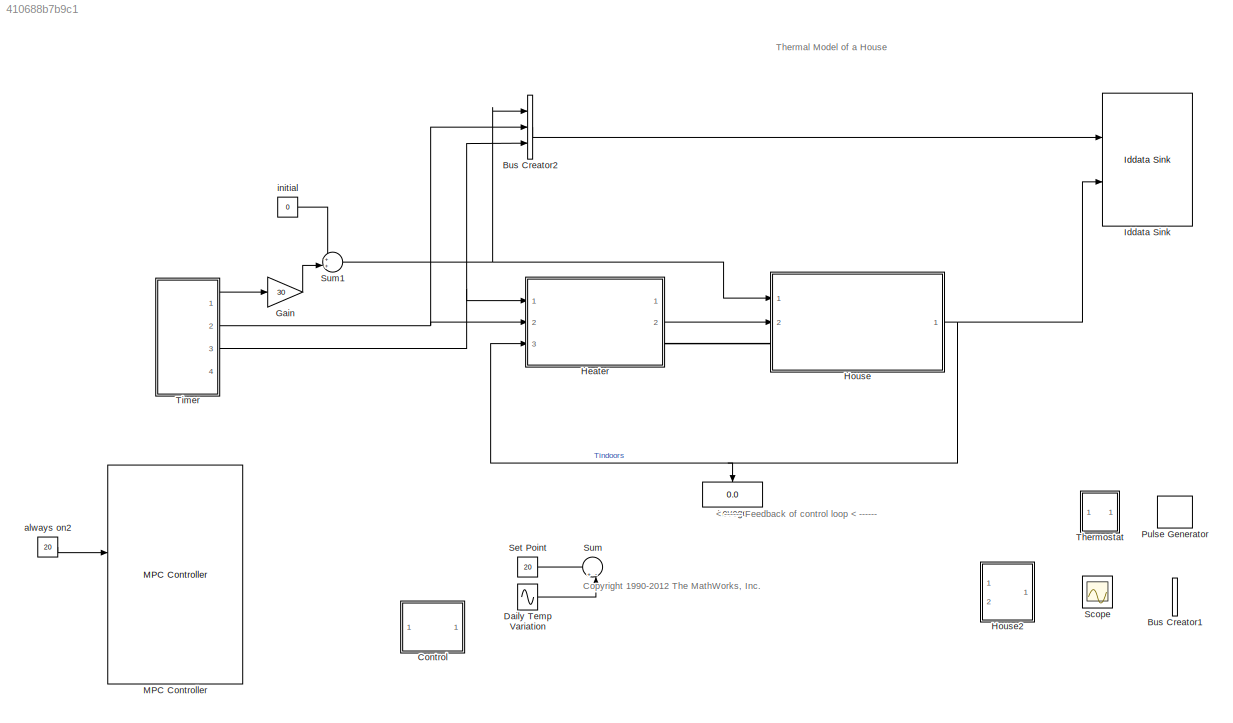
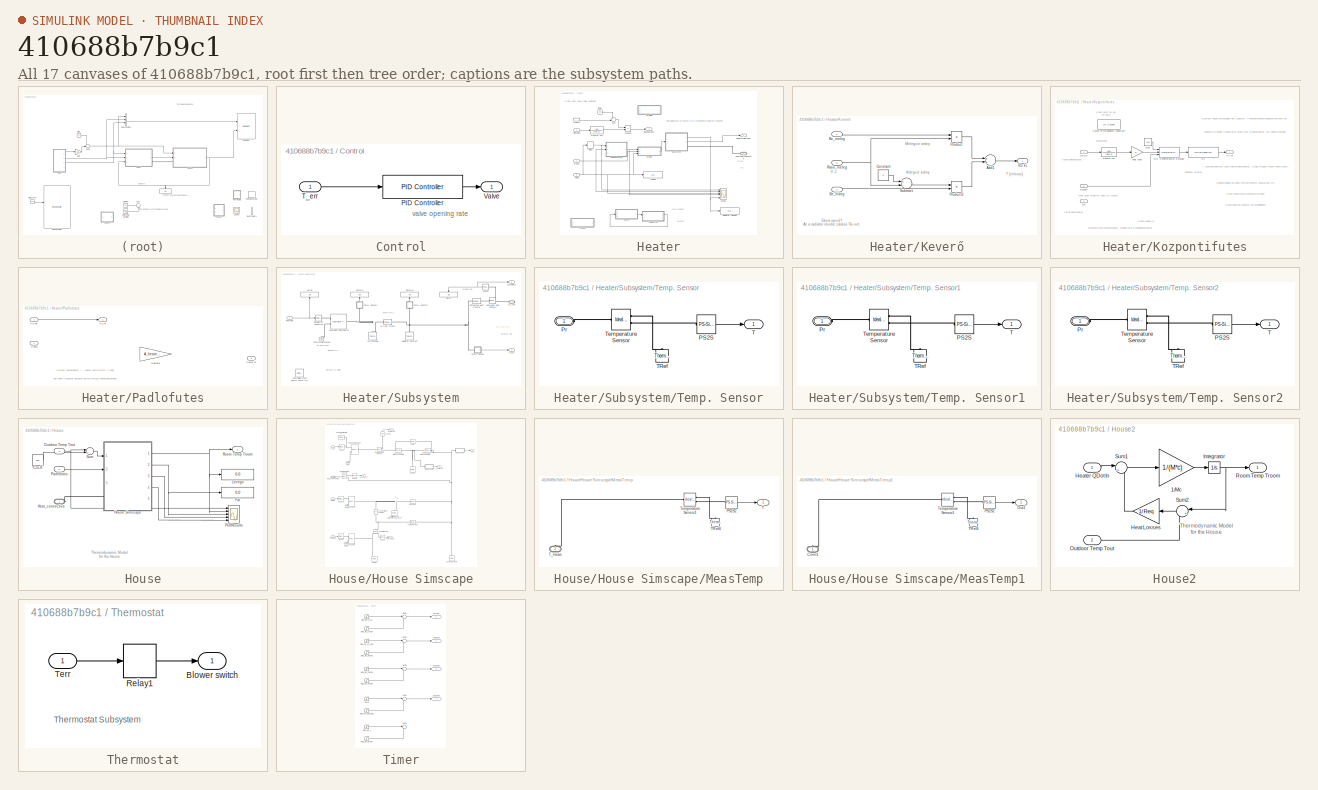
[diagram: thumbnail index - all 17 canvases of the model, root first then tree order]
MODEL slx_410688b7b9c1
KIND model
CONFIG AbsTol = 1e-6
CONFIG EnableMultiTasking = off
CONFIG FixedStep = 1
CONFIG MaxStep = auto
CONFIG MinStep = auto
CONFIG RelTol = 1e-3
CONFIG SampleTimeConstraint = Unconstrained
CONFIG Solver = ode45
CONFIG SolverName = ode45
CONFIG StartTime = 0.0
CONFIG StopTime = 3600*24*68
WORKSPACE source: MATLAB code (in-file)
WORKSPACE code: househeat_data_szakdoga
WORKSPACE code: addpath('components', 'toMPC')
WORKSPACE code: load('toMPC/mpc_model_and_initial_controller.mat')
WORKSPACE code: load('components/radiator_felulet.mat')
BLOCK [BusCreator] Bus Creator1
  Commented = on
  DisplayOption = bar
  InheritFromInputs = on
  Inputs = 2
  Ports = [2, 1]
BLOCK [BusCreator] Bus Creator2
  DisplayOption = bar
  InheritFromInputs = on
  Inputs = 3
  Ports = [3, 1]
BLOCK [SubSystem] Control
  Commented = on
  Ports = [1, 1]
  RequestExecContextInheritance = off
  Variant = off
BLOCK [Reference] Control/PID Controller  REF=simulink/Continuous/PID Controller
  Ports = [1, 1]
  SourceBlock = simulink/Continuous/PID Controller
  SourceType = PID 1dof
BLOCK [Inport] Control/T_err
  IconDisplay = Port number
BLOCK [Outport] Control/Valve
  IconDisplay = Port number
BLOCK [Sin] Daily Temp Variation
  Amplitude = 5
  Commented = on
  Frequency = 3.14*2/3600/24
  Phase = 3.14/2
  Ports = [0, 1]
  SampleTime = 0
BLOCK [Gain] Gain
  Gain = 30
  OutDataTypeStr = Inherit: Inherit via internal rule
  ParamDataTypeStr = Inherit: Inherit via internal rule
  SaturateOnIntegerOverflow = off
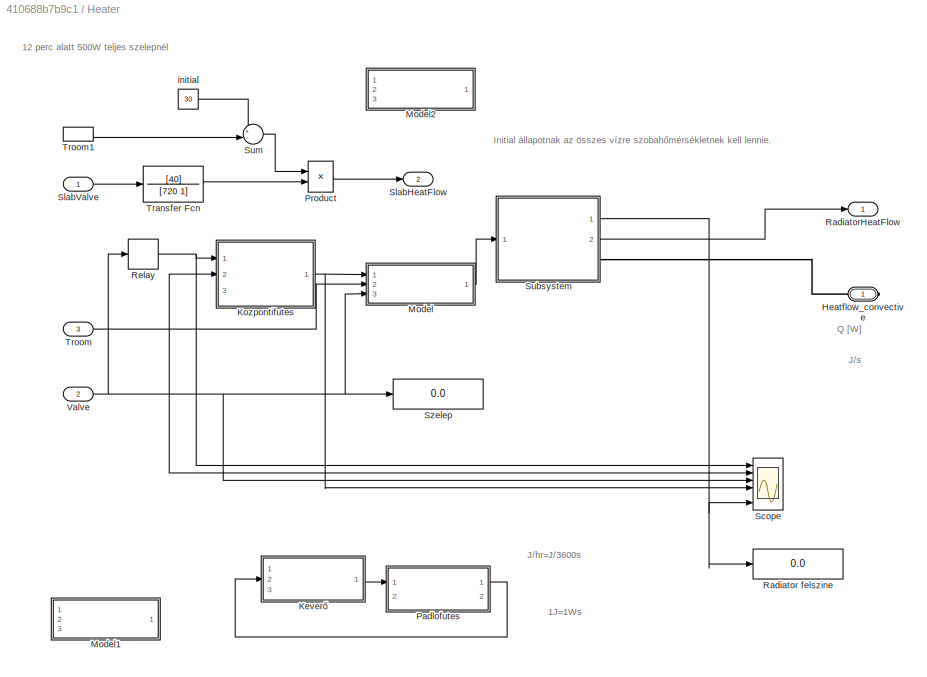
BLOCK [SubSystem] Heater
  Ports = [3, 2, 0, 0, 0, 0, 1]
  RequestExecContextInheritance = off
  Variant = off
BLOCK [PMIOPort] Heater/Heatflow_convective
  Port = 1
  Side = Right
BLOCK [SubSystem] Heater/Keverő
  Commented = on
  Ports = [3, 1]
  RequestExecContextInheritance = off
  Variant = off
BLOCK [Sum] Heater/Keverő/Add1
  InputSameDT = off
  OutDataTypeStr = Inherit: Inherit via internal rule
  Ports = [2, 1]
  SaturateOnIntegerOverflow = off
BLOCK [Inport] Heater/Keverő/Be_hideg
  IconDisplay = Port number
  Port = 2
BLOCK [Inport] Heater/Keverő/Be_meleg
  IconDisplay = Port number
BLOCK [Constant] Heater/Keverő/Constant
BLOCK [Product] Heater/Keverő/Product
  InputSameDT = off
  OutDataTypeStr = Inherit: Inherit via internal rule
  Ports = [2, 1]
  RndMeth = Floor
  SaturateOnIntegerOverflow = off
BLOCK [Product] Heater/Keverő/Product2
  InputSameDT = off
  OutDataTypeStr = Inherit: Inherit via internal rule
  Ports = [2, 1]
  RndMeth = Floor
  SaturateOnIntegerOverflow = off
BLOCK [Inport] Heater/Keverő/Ratio_meleg
  IconDisplay = Port number
  Port = 3
BLOCK [Sum] Heater/Keverő/Subtract
  InputSameDT = off
  Inputs = +-
  OutDataTypeStr = Inherit: Inherit via internal rule
  Ports = [2, 1]
  SaturateOnIntegerOverflow = off
BLOCK [Outport] Heater/Keverő/Víz ki
  IconDisplay = Port number
BLOCK [SubSystem] Heater/Kozpontifutes
  Ports = [3, 1]
  RequestExecContextInheritance = off
  Variant = off
BLOCK [InitialCondition] Heater/Kozpontifutes/IC1
  Value = supp_water_initial_temp
BLOCK [Reference] Heater/Kozpontifutes/Kazán felmelegedése (40deg set)  REF=cstblocks/LTI System
  Ports = [1, 1]
  SourceBlock = cstblocks/LTI System
  SourceType = LTI Block
BLOCK [Reference] Heater/Kozpontifutes/Min. vízhőmérséklet a szobáé  REF=simulink/Discontinuities/Saturation
Dynamic
  Ports = [3, 1]
  SourceBlock = simulink/Discontinuities/Saturation\nDynamic
  SourceType = Saturation Dynamic
BLOCK [Inport] Heater/Kozpontifutes/On//Off
  IconDisplay = Port number
BLOCK [Inport] Heater/Kozpontifutes/T_e
  IconDisplay = Port number
  Port = 3
BLOCK [Inport] Heater/Kozpontifutes/T_szoba
  IconDisplay = Port number
  Port = 2
BLOCK [TransferFcn] Heater/Kozpontifutes/Transfer Fcn
  Denominator = [600 1]
  Numerator = [60]
BLOCK [Outport] Heater/Kozpontifutes/Víz ki
  IconDisplay = Port number
BLOCK [Gain] Heater/Kozpontifutes/heat const
  OutDataTypeStr = Inherit: Inherit via internal rule
  ParamDataTypeStr = Inherit: Inherit via internal rule
  SaturateOnIntegerOverflow = off
BLOCK [Constant] Heater/Kozpontifutes/max.
  Value = 100
BLOCK [ModelReference] Heater/Model
  ModelNameDialog = Radiator
  ModelReferenceVersion = 1.19
  Ports = [3, 1]
  Variant = off
BLOCK [ModelReference] Heater/Model1
  Commented = on
  ModelNameDialog = Radiator
  ModelReferenceVersion = 1.19
  Ports = [3, 1]
  Variant = off
BLOCK [ModelReference] Heater/Model2
  ModelNameDialog = Radiator
  ModelReferenceVersion = 1.19
  Ports = [3, 1]
  Variant = off
BLOCK [SubSystem] Heater/Padlofutes
  Commented = on
  Ports = [2, 2]
  RequestExecContextInheritance = off
  Variant = off
BLOCK [Outport] Heater/Padlofutes/Power ki
  IconDisplay = Port number
  Port = 2
BLOCK [Gain] Heater/Padlofutes/Radiátor
  Gain = A_heater*h_heater
  OutDataTypeStr = Inherit: Inherit via internal rule
  ParamDataTypeStr = Inherit: Inherit via internal rule
  SaturateOnIntegerOverflow = off
BLOCK [Inport] Heater/Padlofutes/Troom
  IconDisplay = Port number
  Port = 2
BLOCK [Inport] Heater/Padlofutes/Víz be
  IconDisplay = Port number
BLOCK [Outport] Heater/Padlofutes/Víz ki
  IconDisplay = Port number
BLOCK [Product] Heater/Product
  InputSameDT = off
  OutDataTypeStr = Inherit: Inherit via internal rule
  Ports = [2, 1]
  RndMeth = Floor
  SaturateOnIntegerOverflow = off
BLOCK [Display] Heater/Radiator felszine
  Decimation = 1
  Ports = [1]
BLOCK [Outport] Heater/RadiatorHeatFlow
  IconDisplay = Port number
BLOCK [Relay] Heater/Relay
  InputProcessing = Elements as channels (sample based)
  OffSwitchValue = 0.05
  OnSwitchValue = 0.15
BLOCK [Scope] Heater/Scope
  NumInputPorts = 6
  Ports = [6]
  ScopeSpecificationString = Simulink.scopes.TimeScopeBlockCfg('CurrentConfiguration', extmgr.ConfigurationSet(extmgr.Configuration('Core','General UI',true),extmgr.Configuration('Core','Source UI',true),extmgr.Configuration('Sources','WiredSimulink',true,'DataLoggingVariableName','ScopeData1'),extmgr.Configuration('Visuals','Time Domain',true,'SerializedDisplays',{struct('MinYLimReal','0.00000','MaxYLimReal','1.00000','YLabe...<+5029ch>
BLOCK [Outport] Heater/SlabHeatFlow
  IconDisplay = Port number
  Port = 2
BLOCK [Inport] Heater/SlabValve
  IconDisplay = Port number
BLOCK [SubSystem] Heater/Subsystem
  Ports = [1, 2, 0, 0, 0, 0, 1]
  RequestExecContextInheritance = off
  Variant = off
BLOCK [Reference] Heater/Subsystem/Controlled Mass Flow Rate Source (TL)  REF=fl_lib/Thermal Liquid/Sources/Controlled Mass Flow
Rate Source (TL)
  Commented = on
  Ports = [0, 0, 0, 0, 0, 2, 1]
  SourceBlock = fl_lib/Thermal Liquid/Sources/Controlled Mass Flow\nRate Source (TL)
  SourceType = Controlled Mass Flow\nRate Source (TL)
BLOCK [Reference] Heater/Subsystem/Convective Heat Transfer  REF=fl_lib/Thermal/Thermal Elements/Convective Heat
Transfer
  Ports = [0, 0, 0, 0, 0, 1, 1]
  SourceBlock = fl_lib/Thermal/Thermal Elements/Convective Heat\nTransfer
  SourceType = Convective Heat\nTransfer
BLOCK [Display] Heater/Subsystem/Fűtővíz
  Decimation = 1
  Ports = [1]
BLOCK [Display] Heater/Subsystem/Fűtővíz1
  Decimation = 1
  Ports = [1]
BLOCK [Inport] Heater/Subsystem/HeatFlow
  IconDisplay = Port number
BLOCK [Display] Heater/Subsystem/Hő be
  Decimation = 1
  Ports = [1]
BLOCK [Display] Heater/Subsystem/Hő ki
  Decimation = 1
  Ports = [1]
BLOCK [Reference] Heater/Subsystem/Ideal Heat Flow Sensor3  REF=fl_lib/Thermal/Thermal Sensors/Ideal Heat Flow
Sensor
  Ports = [0, 0, 0, 0, 0, 1, 2]
  SourceBlock = fl_lib/Thermal/Thermal Sensors/Ideal Heat Flow\nSensor
  SourceType = Ideal Heat Flow\nSensor
BLOCK [Reference] Heater/Subsystem/Ideal Heat Flow Source  REF=fl_lib/Thermal/Thermal Sources/Ideal Heat Flow
Source
  Ports = [0, 0, 0, 0, 0, 1, 2]
  SourceBlock = fl_lib/Thermal/Thermal Sources/Ideal Heat Flow\nSource
  SourceType = Ideal Heat Flow\nSource
BLOCK [Reference] Heater/Subsystem/PS2S4  REF=nesl_utility/PS-Simulink
Converter
  Ports = [0, 1, 0, 0, 0, 1]
  SourceBlock = nesl_utility/PS-Simulink\nConverter
  SourceType = PS-Simulink\nConverter
BLOCK [Outport] Heater/Subsystem/Q_radiator
  IconDisplay = Port number
  Port = 2
BLOCK [Reference] Heater/Subsystem/Radiátor fémtest  REF=fl_lib/Thermal/Thermal Elements/Thermal Mass
  Ports = [0, 0, 0, 0, 0, 1]
  SourceBlock = fl_lib/Thermal/Thermal Elements/Thermal Mass
  SourceType = Thermal Mass
BLOCK [Reference] Heater/Subsystem/Simulink-PS Converter  REF=nesl_utility/Simulink-PS
Converter
  Ports = [1, 0, 0, 0, 0, 0, 1]
  SourceBlock = nesl_utility/Simulink-PS\nConverter
  SourceType = Simulink-PS\nConverter
BLOCK [Outport] Heater/Subsystem/T_surf
  IconDisplay = Port number
BLOCK [SubSystem] Heater/Subsystem/Temp. Sensor
  Ports = [0, 1, 0, 0, 0, 1]
  RequestExecContextInheritance = off
  Variant = off
BLOCK [Reference] Heater/Subsystem/Temp. Sensor/PS2S  REF=nesl_utility/PS-Simulink
Converter
  Ports = [0, 1, 0, 0, 0, 1]
  SourceBlock = nesl_utility/PS-Simulink\nConverter
  SourceType = PS-Simulink\nConverter
BLOCK [PMIOPort] Heater/Subsystem/Temp. Sensor/Pr
  Port = 1
  Side = Left
BLOCK [Outport] Heater/Subsystem/Temp. Sensor/T
  IconDisplay = Port number
BLOCK [Reference] Heater/Subsystem/Temp. Sensor/TRef  REF=fl_lib/Thermal/Thermal Elements/Thermal Reference
  Ports = [0, 0, 0, 0, 0, 1]
  SourceBlock = fl_lib/Thermal/Thermal Elements/Thermal Reference
  SourceType = Thermal Reference
BLOCK [Reference] Heater/Subsystem/Temp. Sensor/Temperature Sensor  REF=fl_lib/Thermal/Thermal Sensors/Ideal Temperature
Sensor
  Ports = [0, 0, 0, 0, 0, 1, 2]
  SourceBlock = fl_lib/Thermal/Thermal Sensors/Ideal Temperature\nSensor
  SourceType = Ideal Temperature\nSensor
BLOCK [SubSystem] Heater/Subsystem/Temp. Sensor1
  Ports = [0, 1, 0, 0, 0, 1]
  RequestExecContextInheritance = off
  Variant = off
BLOCK [Reference] Heater/Subsystem/Temp. Sensor1/PS2S  REF=nesl_utility/PS-Simulink
Converter
  Ports = [0, 1, 0, 0, 0, 1]
  SourceBlock = nesl_utility/PS-Simulink\nConverter
  SourceType = PS-Simulink\nConverter
BLOCK [PMIOPort] Heater/Subsystem/Temp. Sensor1/Pr
  Port = 1
  Side = Left
BLOCK [Outport] Heater/Subsystem/Temp. Sensor1/T
  IconDisplay = Port number
BLOCK [Reference] Heater/Subsystem/Temp. Sensor1/TRef  REF=fl_lib/Thermal/Thermal Elements/Thermal Reference
  Ports = [0, 0, 0, 0, 0, 1]
  SourceBlock = fl_lib/Thermal/Thermal Elements/Thermal Reference
  SourceType = Thermal Reference
BLOCK [Reference] Heater/Subsystem/Temp. Sensor1/Temperature Sensor  REF=fl_lib/Thermal/Thermal Sensors/Ideal Temperature
Sensor
  Ports = [0, 0, 0, 0, 0, 1, 2]
  SourceBlock = fl_lib/Thermal/Thermal Sensors/Ideal Temperature\nSensor
  SourceType = Ideal Temperature\nSensor
BLOCK [SubSystem] Heater/Subsystem/Temp. Sensor2
  Ports = [0, 1, 0, 0, 0, 1]
  RequestExecContextInheritance = off
  Variant = off
BLOCK [Reference] Heater/Subsystem/Temp. Sensor2/PS2S  REF=nesl_utility/PS-Simulink
Converter
  Ports = [0, 1, 0, 0, 0, 1]
  SourceBlock = nesl_utility/PS-Simulink\nConverter
  SourceType = PS-Simulink\nConverter
BLOCK [PMIOPort] Heater/Subsystem/Temp. Sensor2/Pr
  Port = 1
  Side = Left
BLOCK [Outport] Heater/Subsystem/Temp. Sensor2/T
  IconDisplay = Port number
BLOCK [Reference] Heater/Subsystem/Temp. Sensor2/TRef  REF=fl_lib/Thermal/Thermal Elements/Thermal Reference
  Ports = [0, 0, 0, 0, 0, 1]
  SourceBlock = fl_lib/Thermal/Thermal Elements/Thermal Reference
  SourceType = Thermal Reference
BLOCK [Reference] Heater/Subsystem/Temp. Sensor2/Temperature Sensor  REF=fl_lib/Thermal/Thermal Sensors/Ideal Temperature
Sensor
  Ports = [0, 0, 0, 0, 0, 1, 2]
  SourceBlock = fl_lib/Thermal/Thermal Sensors/Ideal Temperature\nSensor
  SourceType = Ideal Temperature\nSensor
BLOCK [Reference] Heater/Subsystem/Thermal Reference  REF=fl_lib/Thermal/Thermal Elements/Thermal Reference
  Ports = [0, 0, 0, 0, 0, 1]
  SourceBlock = fl_lib/Thermal/Thermal Elements/Thermal Reference
  SourceType = Thermal Reference
BLOCK [Reference] Heater/Subsystem/Víz tömege  REF=fl_lib/Thermal/Thermal Elements/Thermal Mass
  Ports = [0, 0, 0, 0, 0, 1]
  SourceBlock = fl_lib/Thermal/Thermal Elements/Thermal Mass
  SourceType = Thermal Mass
BLOCK [Reference] Heater/Subsystem/Víz-fém átvitel  REF=fl_lib/Thermal/Thermal Elements/Convective Heat
Transfer
  Ports = [0, 0, 0, 0, 0, 1, 1]
  SourceBlock = fl_lib/Thermal/Thermal Elements/Convective Heat\nTransfer
  SourceType = Convective Heat\nTransfer
BLOCK [PMIOPort] Heater/Subsystem/q_c_out
  Port = 1
  Side = Right
BLOCK [Sum] Heater/Sum
  IconShape = round
  InputSameDT = off
  Inputs = +-|
  OutDataTypeStr = Inherit: Inherit via internal rule
  Ports = [2, 1]
  SaturateOnIntegerOverflow = off
BLOCK [Display] Heater/Szelep
  Decimation = 1
  Ports = [1]
BLOCK [TransferFcn] Heater/Transfer Fcn
  Denominator = [720 1]
  Numerator = [40]
BLOCK [Inport] Heater/Troom
  IconDisplay = Port number
  Port = 3
BLOCK [InportShadow] Heater/Troom1
  IconDisplay = Port number
  Port = 3
BLOCK [Inport] Heater/Valve
  IconDisplay = Port number
  Port = 2
BLOCK [Constant] Heater/initial
  Value = 30
BLOCK [SubSystem] House
  Ports = [2, 1, 0, 0, 0, 1]
  RequestExecContextInheritance = off
  ShowPortLabels = SignalName
  Variant = off
BLOCK [Display] House/Fal
  Decimation = 1
  Ports = [1]
BLOCK [PMIOPort] House/Heat_convective
  Port = 1
  Side = Left
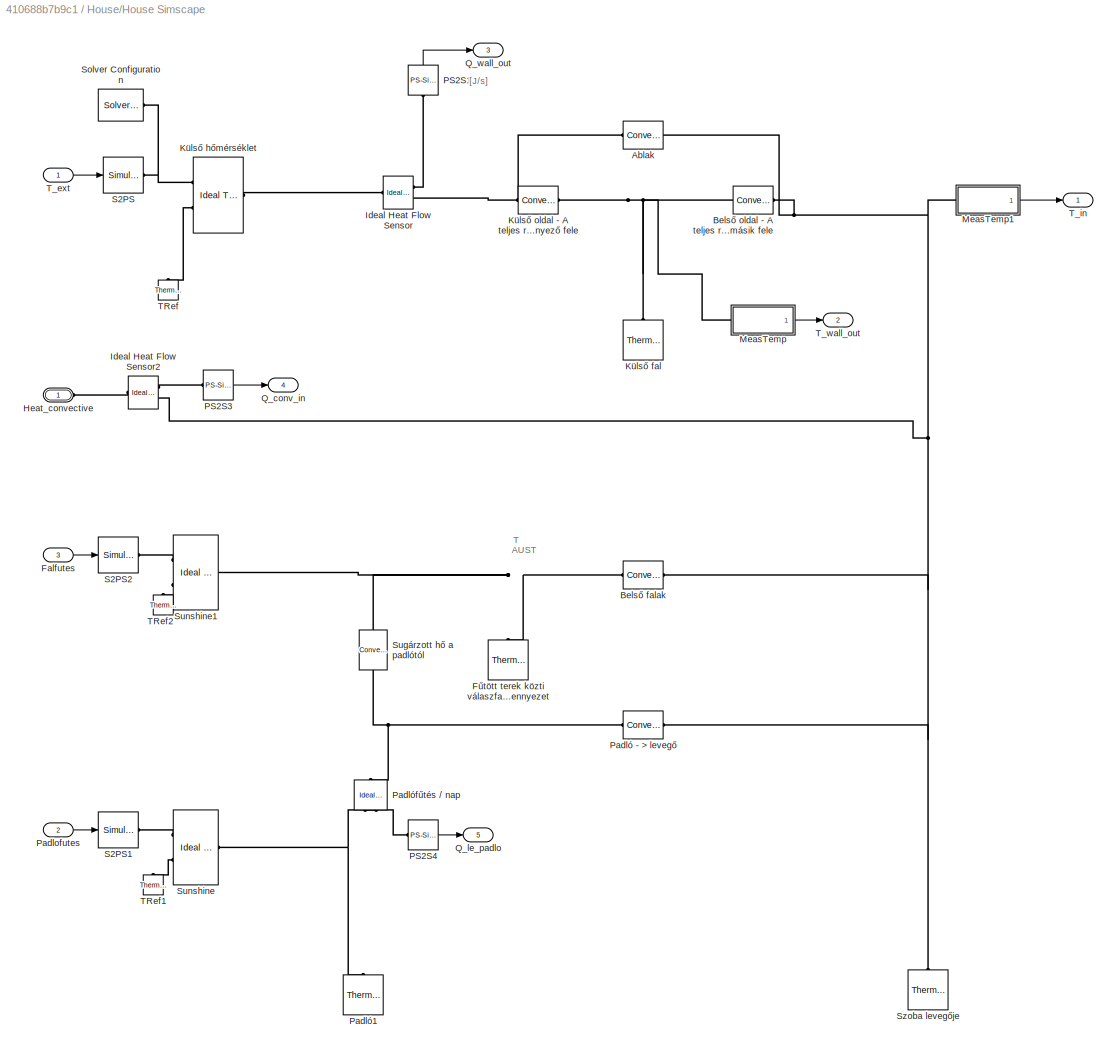
BLOCK [SubSystem] House/House Simscape
  Ports = [3, 5, 0, 0, 0, 1]
  RequestExecContextInheritance = off
  Variant = off
BLOCK [Reference] House/House Simscape/Ablak  REF=fl_lib/Thermal/Thermal Elements/Convective Heat
Transfer
  Ports = [0, 0, 0, 0, 0, 1, 1]
  SourceBlock = fl_lib/Thermal/Thermal Elements/Convective Heat\nTransfer
  SourceType = Convective Heat\nTransfer
BLOCK [Reference] House/House Simscape/Belső falak  REF=fl_lib/Thermal/Thermal Elements/Convective Heat
Transfer
  Ports = [0, 0, 0, 0, 0, 1, 1]
  SourceBlock = fl_lib/Thermal/Thermal Elements/Convective Heat\nTransfer
  SourceType = Convective Heat\nTransfer
BLOCK [Reference] House/House Simscape/Belső oldal - A teljes rétegtervi hőátbocsátási tényező másik fele  REF=fl_lib/Thermal/Thermal Elements/Convective Heat
Transfer
  Ports = [0, 0, 0, 0, 0, 1, 1]
  SourceBlock = fl_lib/Thermal/Thermal Elements/Convective Heat\nTransfer
  SourceType = Convective Heat\nTransfer
BLOCK [Inport] House/House Simscape/Falfutes
  IconDisplay = Port number
  Port = 3
BLOCK [Reference] House/House Simscape/Fűtött terek közti válaszfalak, mennyezet  REF=fl_lib/Thermal/Thermal Elements/Thermal Mass
  Ports = [0, 0, 0, 0, 0, 1]
  SourceBlock = fl_lib/Thermal/Thermal Elements/Thermal Mass
  SourceType = Thermal Mass
BLOCK [PMIOPort] House/House Simscape/Heat_convective
  Port = 1
  Side = Left
BLOCK [Reference] House/House Simscape/Ideal Heat Flow Sensor  REF=fl_lib/Thermal/Thermal Sensors/Ideal Heat Flow
Sensor
  Ports = [0, 0, 0, 0, 0, 1, 2]
  SourceBlock = fl_lib/Thermal/Thermal Sensors/Ideal Heat Flow\nSensor
  SourceType = Ideal Heat Flow\nSensor
BLOCK [Reference] House/House Simscape/Ideal Heat Flow Sensor2  REF=fl_lib/Thermal/Thermal Sensors/Ideal Heat Flow
Sensor
  Ports = [0, 0, 0, 0, 0, 1, 2]
  SourceBlock = fl_lib/Thermal/Thermal Sensors/Ideal Heat Flow\nSensor
  SourceType = Ideal Heat Flow\nSensor
BLOCK [Reference] House/House Simscape/Külső fal  REF=fl_lib/Thermal/Thermal Elements/Thermal Mass
  Ports = [0, 0, 0, 0, 0, 1]
  SourceBlock = fl_lib/Thermal/Thermal Elements/Thermal Mass
  SourceType = Thermal Mass
BLOCK [Reference] House/House Simscape/Külső hőmérséklet  REF=fl_lib/Thermal/Thermal Sources/Ideal Temperature
Source
  Ports = [0, 0, 0, 0, 0, 1, 2]
  SourceBlock = fl_lib/Thermal/Thermal Sources/Ideal Temperature\nSource
  SourceType = Ideal Temperature\nSource
BLOCK [Reference] House/House Simscape/Külső oldal - A teljes rétegtervi hőátbocsátási tényező fele  REF=fl_lib/Thermal/Thermal Elements/Convective Heat
Transfer
  Ports = [0, 0, 0, 0, 0, 1, 1]
  SourceBlock = fl_lib/Thermal/Thermal Elements/Convective Heat\nTransfer
  SourceType = Convective Heat\nTransfer
BLOCK [SubSystem] House/House Simscape/MeasTemp
  Ports = [0, 1, 0, 0, 0, 1]
  RequestExecContextInheritance = off
  Variant = off
BLOCK [Reference] House/House Simscape/MeasTemp/PS2S2  REF=nesl_utility/PS-Simulink
Converter
  Ports = [0, 1, 0, 0, 0, 1]
  SourceBlock = nesl_utility/PS-Simulink\nConverter
  SourceType = PS-Simulink\nConverter
BLOCK [Outport] House/House Simscape/MeasTemp/T
  IconDisplay = Port number
BLOCK [Reference] House/House Simscape/MeasTemp/TRef4  REF=fl_lib/Thermal/Thermal Elements/Thermal Reference
  Ports = [0, 0, 0, 0, 0, 1]
  SourceBlock = fl_lib/Thermal/Thermal Elements/Thermal Reference
  SourceType = Thermal Reference
BLOCK [PMIOPort] House/House Simscape/MeasTemp/T_meas
  Port = 1
  Side = Left
BLOCK [Reference] House/House Simscape/MeasTemp/Temperature Sensor1  REF=fl_lib/Thermal/Thermal Sensors/Ideal Temperature
Sensor
  Ports = [0, 0, 0, 0, 0, 1, 2]
  SourceBlock = fl_lib/Thermal/Thermal Sensors/Ideal Temperature\nSensor
  SourceType = Ideal Temperature\nSensor
BLOCK [SubSystem] House/House Simscape/MeasTemp1
  Ports = [0, 1, 0, 0, 0, 1]
  RequestExecContextInheritance = off
  Variant = off
BLOCK [PMIOPort] House/House Simscape/MeasTemp1/Conn1
  Port = 1
  Side = Left
BLOCK [Outport] House/House Simscape/MeasTemp1/Out1
  IconDisplay = Port number
BLOCK [Reference] House/House Simscape/MeasTemp1/PS2S2  REF=nesl_utility/PS-Simulink
Converter
  Ports = [0, 1, 0, 0, 0, 1]
  SourceBlock = nesl_utility/PS-Simulink\nConverter
  SourceType = PS-Simulink\nConverter
BLOCK [Reference] House/House Simscape/MeasTemp1/TRef4  REF=fl_lib/Thermal/Thermal Elements/Thermal Reference
  Ports = [0, 0, 0, 0, 0, 1]
  SourceBlock = fl_lib/Thermal/Thermal Elements/Thermal Reference
  SourceType = Thermal Reference
BLOCK [Reference] House/House Simscape/MeasTemp1/Temperature Sensor1  REF=fl_lib/Thermal/Thermal Sensors/Ideal Temperature
Sensor
  Ports = [0, 0, 0, 0, 0, 1, 2]
  SourceBlock = fl_lib/Thermal/Thermal Sensors/Ideal Temperature\nSensor
  SourceType = Ideal Temperature\nSensor
BLOCK [Reference] House/House Simscape/PS2S1  REF=nesl_utility/PS-Simulink
Converter
  Ports = [0, 1, 0, 0, 0, 1]
  SourceBlock = nesl_utility/PS-Simulink\nConverter
  SourceType = PS-Simulink\nConverter
BLOCK [Reference] House/House Simscape/PS2S3  REF=nesl_utility/PS-Simulink
Converter
  Ports = [0, 1, 0, 0, 0, 1]
  SourceBlock = nesl_utility/PS-Simulink\nConverter
  SourceType = PS-Simulink\nConverter
BLOCK [Reference] House/House Simscape/PS2S4  REF=nesl_utility/PS-Simulink
Converter
  Ports = [0, 1, 0, 0, 0, 1]
  SourceBlock = nesl_utility/PS-Simulink\nConverter
  SourceType = PS-Simulink\nConverter
BLOCK [Inport] House/House Simscape/Padlofutes
  IconDisplay = Port number
  Port = 2
BLOCK [Reference] House/House Simscape/Padló - > levegő  REF=fl_lib/Thermal/Thermal Elements/Convective Heat
Transfer
  Ports = [0, 0, 0, 0, 0, 1, 1]
  SourceBlock = fl_lib/Thermal/Thermal Elements/Convective Heat\nTransfer
  SourceType = Convective Heat\nTransfer
BLOCK [Reference] House/House Simscape/Padló1  REF=fl_lib/Thermal/Thermal Elements/Thermal Mass
  Ports = [0, 0, 0, 0, 0, 1]
  SourceBlock = fl_lib/Thermal/Thermal Elements/Thermal Mass
  SourceType = Thermal Mass
BLOCK [Reference] House/House Simscape/Padlófűtés // nap  REF=fl_lib/Thermal/Thermal Sensors/Ideal Heat Flow
Sensor
  Ports = [0, 0, 0, 0, 0, 1, 2]
  SourceBlock = fl_lib/Thermal/Thermal Sensors/Ideal Heat Flow\nSensor
  SourceType = Ideal Heat Flow\nSensor
BLOCK [Outport] House/House Simscape/Q_conv_in
  IconDisplay = Port number
  Port = 4
BLOCK [Outport] House/House Simscape/Q_le_padlo
  IconDisplay = Port number
  Port = 5
BLOCK [Outport] House/House Simscape/Q_wall_out
  IconDisplay = Port number
  Port = 3
BLOCK [Reference] House/House Simscape/S2PS  REF=nesl_utility/Simulink-PS
Converter
  Ports = [1, 0, 0, 0, 0, 0, 1]
  SourceBlock = nesl_utility/Simulink-PS\nConverter
  SourceType = Simulink-PS\nConverter
BLOCK [Reference] House/House Simscape/S2PS1  REF=nesl_utility/Simulink-PS
Converter
  Ports = [1, 0, 0, 0, 0, 0, 1]
  SourceBlock = nesl_utility/Simulink-PS\nConverter
  SourceType = Simulink-PS\nConverter
BLOCK [Reference] House/House Simscape/S2PS2  REF=nesl_utility/Simulink-PS
Converter
  Ports = [1, 0, 0, 0, 0, 0, 1]
  SourceBlock = nesl_utility/Simulink-PS\nConverter
  SourceType = Simulink-PS\nConverter
BLOCK [Reference] House/House Simscape/Solver Configuration  REF=nesl_utility/Solver
Configuration
  Ports = [0, 0, 0, 0, 0, 0, 1]
  SourceBlock = nesl_utility/Solver\nConfiguration
  SourceType = Solver\nConfiguration
BLOCK [Reference] House/House Simscape/Sugárzott hő a padlótól  REF=fl_lib/Thermal/Thermal Elements/Convective Heat
Transfer
  Ports = [0, 0, 0, 0, 0, 1, 1]
  SourceBlock = fl_lib/Thermal/Thermal Elements/Convective Heat\nTransfer
  SourceType = Convective Heat\nTransfer
BLOCK [Reference] House/House Simscape/Sunshine  REF=fl_lib/Thermal/Thermal Sources/Ideal Heat Flow
Source
  Ports = [0, 0, 0, 0, 0, 1, 2]
  SourceBlock = fl_lib/Thermal/Thermal Sources/Ideal Heat Flow\nSource
  SourceType = Ideal Heat Flow\nSource
BLOCK [Reference] House/House Simscape/Sunshine1  REF=fl_lib/Thermal/Thermal Sources/Ideal Heat Flow
Source
  Ports = [0, 0, 0, 0, 0, 1, 2]
  SourceBlock = fl_lib/Thermal/Thermal Sources/Ideal Heat Flow\nSource
  SourceType = Ideal Heat Flow\nSource
BLOCK [Reference] House/House Simscape/Szoba levegője  REF=fl_lib/Thermal/Thermal Elements/Thermal Mass
  Ports = [0, 0, 0, 0, 0, 1]
  SourceBlock = fl_lib/Thermal/Thermal Elements/Thermal Mass
  SourceType = Thermal Mass
BLOCK [Reference] House/House Simscape/TRef  REF=fl_lib/Thermal/Thermal Elements/Thermal Reference
  Ports = [0, 0, 0, 0, 0, 1]
  SourceBlock = fl_lib/Thermal/Thermal Elements/Thermal Reference
  SourceType = Thermal Reference
BLOCK [Reference] House/House Simscape/TRef1  REF=fl_lib/Thermal/Thermal Elements/Thermal Reference
  Ports = [0, 0, 0, 0, 0, 1]
  SourceBlock = fl_lib/Thermal/Thermal Elements/Thermal Reference
  SourceType = Thermal Reference
BLOCK [Reference] House/House Simscape/TRef2  REF=fl_lib/Thermal/Thermal Elements/Thermal Reference
  Ports = [0, 0, 0, 0, 0, 1]
  SourceBlock = fl_lib/Thermal/Thermal Elements/Thermal Reference
  SourceType = Thermal Reference
BLOCK [Inport] House/House Simscape/T_ext
  IconDisplay = Port number
BLOCK [Outport] House/House Simscape/T_in
  IconDisplay = Port number
BLOCK [Outport] House/House Simscape/T_wall_out
  IconDisplay = Port number
  Port = 2
BLOCK [Display] House/Levego
  Decimation = 1
  Ports = [1]
BLOCK [Inport] House/Outdoor Temp Tout
  IconDisplay = Port number
BLOCK [Inport] House/Padlofutes
  IconDisplay = Port number
  Port = 2
BLOCK [Scope] House/PlotResults
  NumInputPorts = 5
  Ports = [5]
  ScopeSpecificationString = Simulink.scopes.TimeScopeBlockCfg('CurrentConfiguration', extmgr.ConfigurationSet(extmgr.Configuration('Core','General UI',true),extmgr.Configuration('Core','Source UI',true),extmgr.Configuration('Sources','WiredSimulink',true,'DataLoggingVariableName','ScopeData1','DataLoggingSaveFormat','Array','DataLoggingDecimation','1','DataLoggingDecimateData',true),extmgr.Configuration('Visuals','Time Domai...<+5144ch>
BLOCK [Outport] House/Room Temp Troom
  IconDisplay = Port number
  InitialOutput = 0
BLOCK [Sum] House/Sum
  IconShape = round
  InputSameDT = off
  Inputs = |++
  OutDataTypeStr = Inherit: Inherit via internal rule
  Ports = [2, 1]
  SaturateOnIntegerOverflow = off
BLOCK [Constant] House/°C-to-K
  Value = 273
BLOCK [SubSystem] House2
  Commented = on
  Ports = [2, 1]
  RequestExecContextInheritance = off
  Variant = off
BLOCK [Gain] House2/1//Mc
  Gain = 1/(M*c)
BLOCK [Gain] House2/Heat Losses
  Gain = 1/Req
BLOCK [Inport] House2/Heater QDot In
  IconDisplay = Port number
BLOCK [Integrator] House2/Integrator
  InitialCondition = TinIC
  Ports = [1, 1]
BLOCK [Inport] House2/Outdoor Temp Tout
  IconDisplay = Port number
  Port = 2
BLOCK [Outport] House2/Room Temp Troom
  IconDisplay = Port number
  InitialOutput = 0
BLOCK [Sum] House2/Sum1
  IconShape = round
  Inputs = |+-
  Ports = [2, 1]
BLOCK [Sum] House2/Sum2
  IconShape = round
  Inputs = |+-
  Ports = [2, 1]
BLOCK [Reference] Iddata Sink  REF=slident/Iddata Sink  (lib defined in mdl_f7d4911ca73a)
  Ports = [2]
  SourceBlock = slident/Iddata Sink
  SourceType = IDDATA Sink
BLOCK [Display] Levego
  Decimation = 1
  Ports = [1]
BLOCK [Reference] MPC Controller  REF=mpclib/MPC Controller  (lib defined in mdl_ae329e0e0455)
  Commented = on
  Ports = [4, 1]
  SCDEnableBlockLinearizationSpecification = on
  SourceBlock = mpclib/MPC Controller
  SourceType = MPC
BLOCK [DiscretePulseGenerator] Pulse Generator
  Commented = on
  Period = 3600*24*4
  Ports = [0, 1]
  PulseType = Time based
  PulseWidth = 50
BLOCK [Scope] Scope
  Commented = on
  NumInputPorts = 1
  Ports = [1]
  ScopeSpecificationString = Simulink.scopes.TimeScopeBlockCfg('CurrentConfiguration', extmgr.ConfigurationSet(extmgr.Configuration('Core','General UI',true),extmgr.Configuration('Core','Source UI',true),extmgr.Configuration('Sources','WiredSimulink',true,'DataLoggingVariableName','ScopeData2'),extmgr.Configuration('Visuals','Time Domain',true,'SerializedDisplays',{struct('MinYLimReal','-10','MaxYLimReal','20','YLabelReal',''...<+1374ch>
BLOCK [Constant] Set Point
  Commented = on
  Value = 20
BLOCK [Sum] Sum
  Commented = on
  IconShape = round
  Inputs = +-|
  Ports = [2, 1]
BLOCK [Sum] Sum1
  IconShape = round
  Inputs = ++|
  Ports = [2, 1]
BLOCK [SubSystem] Thermostat
  Commented = on
  Ports = [1, 1]
  RequestExecContextInheritance = off
  Variant = off
BLOCK [Outport] Thermostat/Blower switch
  IconDisplay = Port number
  InitialOutput = 0
BLOCK [Relay] Thermostat/Relay1
  OffSwitchValue = -1
  OnSwitchValue = 1
BLOCK [Inport] Thermostat/Terr
  IconDisplay = Port number
BLOCK [SubSystem] Timer
  Ports = [0, 4]
  RequestExecContextInheritance = off
  Variant = off
BLOCK [Outport] Timer/0..14nap
  IconDisplay = Port number
BLOCK [Outport] Timer/24..30nap
  IconDisplay = Port number
  Port = 2
BLOCK [Outport] Timer/30..35nap
  IconDisplay = Port number
  Port = 4
BLOCK [Outport] Timer/40..48nap
  IconDisplay = Port number
  Port = 3
BLOCK [Step] Timer/45645
  Commented = on
  SampleTime = 0
  Time = 3600*24*30
BLOCK [Sum] Timer/Sum1
  IconShape = round
  Inputs = |+-
  Ports = [2, 1]
BLOCK [Sum] Timer/Sum2
  IconShape = round
  Inputs = |+-
  Ports = [2, 1]
BLOCK [Sum] Timer/Sum3
  IconShape = round
  Inputs = |+-
  Ports = [2, 1]
BLOCK [Sum] Timer/Sum4
  Commented = on
  IconShape = round
  Inputs = |+-
  Ports = [2, 1]
BLOCK [Sum] Timer/Sum5
  Commented = on
  IconShape = round
  Inputs = |+-
  Ports = [2, 1]
BLOCK [Step] Timer/step_be_14nap
  SampleTime = 0
  Time = 3600*24*14
BLOCK [Step] Timer/step_be_1óra
  SampleTime = 0
  Time = 3600*1
BLOCK [Step] Timer/step_be_24_nap
  SampleTime = 0
  Time = 3600*24*24
BLOCK [Step] Timer/step_be_3500nap
  Commented = on
  SampleTime = 0
  Time = 3600*24*35
BLOCK [Step] Timer/step_be_38nap
  SampleTime = 0
  Time = 3600*24*38
BLOCK [Step] Timer/step_be_4
  Commented = on
  SampleTime = 0
  Time = 0
BLOCK [Step] Timer/step_be_48nap
  SampleTime = 0
  Time = 3600*24*48
BLOCK [Step] Timer/step_be_5nap4
  Commented = on
  SampleTime = 0
  Time = 3600*24*5
BLOCK [Step] Timer/step_be_60nap
  SampleTime = 0
  Time = 3600*24*60
BLOCK [Constant] always on2
  Value = 20
BLOCK [Constant] initial
  Value = 0
ANNOTATION (root): < ------ Feedback of control loop < ------
ANNOTATION (root): <copyright redacted>
ANNOTATION (root): Thermal Model of a House
ANNOTATION Control: valve opening rate
ANNOTATION Heater: 12 perc alatt 500W teljes szelepnél
ANNOTATION Heater: 1J=1Ws
ANNOTATION Heater: Initial állapotnak az összes vízre szobahőmérsékletnek kell lennie.
ANNOTATION Heater: J/hr=J/3600s
ANNOTATION Heater: J/s
ANNOTATION Heater: Q [W]
ANNOTATION Heater/Keverő: 0..1
ANNOTATION Heater/Keverő: Hidegvíz arány
ANNOTATION Heater/Keverő: Melegvíz arány
ANNOTATION Heater/Keverő: T [celsius]
ANNOTATION Heater/Keverő: Zárva opció? Az a radiátor rövidre zárása Tki-vel.
ANNOTATION Heater/Kozpontifutes: 6 perc alatt áll be 40 fokra
ANNOTATION Heater/Kozpontifutes: Kazán modellje
ANNOTATION Heater/Kozpontifutes: A szaturációhoz kell csak a belső hőmérséklet. Amúgy a supply water temp a külső hőmérséklet függvénye (is lehet).
ANNOTATION Heater/Kozpontifutes: Egyszerű ramp ugrásválasszal, alsókorlátja a szobahőmérséklet
ANNOTATION Heater/Kozpontifutes: Ehelyett kazán felmeledést kell számolni. Paraméterezhető kazánteljesítmény és vízre c*m*deltaT kellene, a radiátorok hőmérsékleteséséből.
ANNOTATION Heater/Kozpontifutes: Fűtőtest felszíne
ANNOTATION Heater/Kozpontifutes: Heat const modifier lehet LUT alapj'n
ANNOTATION Heater/Kozpontifutes: Hőveszteségek kellenek? Teljesítménnyel számoljunk itt?
ANNOTATION Heater/Kozpontifutes: Kazán bekapcsolása
ANNOTATION Heater/Kozpontifutes: Külső hőmérséklet
ANNOTATION Heater/Kozpontifutes: Külön kazán és radiátor felmelegedése?
ANNOTATION Heater/Kozpontifutes: Külön radiátrorok elzárása/kinyitása?
ANNOTATION Heater/Kozpontifutes: Lehetne a kimenet a kazan altal eloallitott vizhomerseklet, ezt lehetne szelepekkel skalazni, majd futotestbe vezetni
ANNOTATION Heater/Kozpontifutes: ugrásválasz
ANNOTATION Heater/Padlofutes: Feluleti homerseklet ----- képlet van a HERZ II-ban!
ANNOTATION Heater/Padlofutes: Ide johet a radiátor karakterisztika a felszín hőmérsékletéhez
ANNOTATION Heater/Subsystem: 150W/m2K ?
ANNOTATION Heater/Subsystem: q = ε σ T 4 A
ANNOTATION Heater/Subsystem: BEJÖVŐ VÍZ
ANNOTATION Heater/Subsystem: Ez biztos ide?
ANNOTATION Heater/Subsystem: Levegő felé
ANNOTATION Heater/Subsystem: Tárgyak felé
ANNOTATION Heater/Subsystem: elmenő víz hője?
ANNOTATION House: Thermodynamic Model for the House
ANNOTATION House/House Simscape: T
ANNOTATION House/House Simscape: AUST
ANNOTATION House/House Simscape: [J/s]
ANNOTATION House2: Thermodynamic Model for the House
ANNOTATION Thermostat: Thermostat Subsystem
LINE Bus Creator2:1 -> Iddata Sink:1
LINE Control/PID Controller:1 -> Control/Valve:1
LINE Control/T_err:1 -> Control/PID Controller:1
LINE Daily Temp Variation:1 -> Sum:2
LINE Gain:1 -> Sum1:2
LINE Heater/Keverő/Add1:1 -> Heater/Keverő/Víz ki:1
LINE Heater/Keverő/Be_hideg:1 -> Heater/Keverő/Product2:2
LINE Heater/Keverő/Be_meleg:1 -> Heater/Keverő/Product:1
LINE Heater/Keverő/Constant:1 -> Heater/Keverő/Subtract:1
LINE Heater/Keverő/Product2:1 -> Heater/Keverő/Add1:2
LINE Heater/Keverő/Product:1 -> Heater/Keverő/Add1:1
NET Heater/Keverő/Ratio_meleg:1 -> Heater/Keverő/Product:2, Heater/Keverő/Subtract:2
LINE Heater/Keverő/Subtract:1 -> Heater/Keverő/Product2:1
LINE Heater/Keverő:1 -> Heater/Padlofutes:1
LINE Heater/Kozpontifutes/IC1:1 -> Heater/Kozpontifutes/Víz ki:1
LINE Heater/Kozpontifutes/Min. vízhőmérséklet a szobáé:1 -> Heater/Kozpontifutes/IC1:1
LINE Heater/Kozpontifutes/On//Off:1 -> Heater/Kozpontifutes/Transfer Fcn:1
LINE Heater/Kozpontifutes/T_szoba:1 -> Heater/Kozpontifutes/Min. vízhőmérséklet a szobáé:3
LINE Heater/Kozpontifutes/Transfer Fcn:1 -> Heater/Kozpontifutes/heat const:1
LINE Heater/Kozpontifutes/heat const:1 -> Heater/Kozpontifutes/Min. vízhőmérséklet a szobáé:2
LINE Heater/Kozpontifutes/max.:1 -> Heater/Kozpontifutes/Min. vízhőmérséklet a szobáé:1
NET Heater/Kozpontifutes:1 -> Heater/Model:1, Heater/Scope:4
LINE Heater/Model:1 -> Heater/Subsystem:1
LINE Heater/Padlofutes/Víz be:1 -> Heater/Padlofutes/Víz ki:1
LINE Heater/Padlofutes:1 -> Heater/Keverő:2
LINE Heater/Product:1 -> Heater/SlabHeatFlow:1
NET Heater/Relay:1 -> Heater/Kozpontifutes:1, Heater/Scope:1
LINE Heater/SlabValve:1 -> Heater/Transfer Fcn:1
NET Heater/Subsystem/HeatFlow:1 -> Heater/Subsystem/Hő be:1, Heater/Subsystem/Simulink-PS Converter:1
NET Heater/Subsystem/PS2S4:1 -> Heater/Subsystem/Hő ki:1, Heater/Subsystem/Q_radiator:1
LINE Heater/Subsystem/Temp. Sensor/PS2S:1 -> Heater/Subsystem/Temp. Sensor/T:1
LINE Heater/Subsystem/Temp. Sensor1/PS2S:1 -> Heater/Subsystem/Temp. Sensor1/T:1
LINE Heater/Subsystem/Temp. Sensor1:1 -> Heater/Subsystem/Fűtővíz:1
LINE Heater/Subsystem/Temp. Sensor2/PS2S:1 -> Heater/Subsystem/Temp. Sensor2/T:1
LINE Heater/Subsystem/Temp. Sensor2:1 -> Heater/Subsystem/Fűtővíz1:1
LINE Heater/Subsystem/Temp. Sensor:1 -> Heater/Subsystem/T_surf:1
NET Heater/Subsystem:1 -> Heater/Radiator felszine:1, Heater/Scope:6
LINE Heater/Subsystem:2 -> Heater/RadiatorHeatFlow:1
LINE Heater/Sum:1 -> Heater/Product:1
LINE Heater/Transfer Fcn:1 -> Heater/Product:2
LINE Heater/Troom1:1 -> Heater/Sum:2
NET Heater/Troom:1 -> Heater/Kozpontifutes:2, Heater/Model:2, Heater/Scope:2
NET Heater/Valve:1 -> Heater/Model:3, Heater/Relay:1, Heater/Scope:3, Heater/Szelep:1
LINE Heater/initial:1 -> Heater/Sum:1
LINE Heater:2 -> House:2
LINE House/House Simscape/Falfutes:1 -> House/House Simscape/S2PS2:1
LINE House/House Simscape/MeasTemp/PS2S2:1 -> House/House Simscape/MeasTemp/T:1
LINE House/House Simscape/MeasTemp1/PS2S2:1 -> House/House Simscape/MeasTemp1/Out1:1
LINE House/House Simscape/MeasTemp1:1 -> House/House Simscape/T_in:1
LINE House/House Simscape/MeasTemp:1 -> House/House Simscape/T_wall_out:1
LINE House/House Simscape/PS2S1:1 -> House/House Simscape/Q_wall_out:1
LINE House/House Simscape/PS2S3:1 -> House/House Simscape/Q_conv_in:1
LINE House/House Simscape/PS2S4:1 -> House/House Simscape/Q_le_padlo:1
LINE House/House Simscape/Padlofutes:1 -> House/House Simscape/S2PS1:1
LINE House/House Simscape/T_ext:1 -> House/House Simscape/S2PS:1
NET House/House Simscape:1 -> House/Levego:1, House/PlotResults:2, House/Room Temp Troom:1
NET House/House Simscape:2 -> House/Fal:1, House/PlotResults:3
LINE House/House Simscape:3 -> House/PlotResults:4
LINE House/House Simscape:4 -> House/PlotResults:5
NET House/Outdoor Temp Tout:1 -> House/PlotResults:1, House/Sum:1
LINE House/Padlofutes:1 -> House/House Simscape:2
LINE House/Sum:1 -> House/House Simscape:1
LINE House/°C-to-K:1 -> House/Sum:2
LINE House2/1//Mc:1 -> House2/Integrator:1
LINE House2/Heat Losses:1 -> House2/Sum1:2
LINE House2/Heater QDot In:1 -> House2/Sum1:1
NET House2/Integrator:1 -> House2/Room Temp Troom:1, House2/Sum2:1
LINE House2/Outdoor Temp Tout:1 -> House2/Sum2:2
LINE House2/Sum1:1 -> House2/1//Mc:1
LINE House2/Sum2:1 -> House2/Heat Losses:1
NET House:1 -> Heater:3, Iddata Sink:2, Levego:1
LINE Set Point:1 -> Sum:1
NET Sum1:1 -> Bus Creator2:1, House:1
LINE Thermostat/Relay1:1 -> Thermostat/Blower switch:1
LINE Thermostat/Terr:1 -> Thermostat/Relay1:1
LINE Timer/45645:1 -> Timer/Sum4:1
LINE Timer/Sum1:1 -> Timer/0..14nap:1
LINE Timer/Sum2:1 -> Timer/24..30nap:1
LINE Timer/Sum3:1 -> Timer/40..48nap:1
LINE Timer/Sum4:1 -> Timer/30..35nap:1
LINE Timer/step_be_14nap:1 -> Timer/Sum1:2
LINE Timer/step_be_1óra:1 -> Timer/Sum1:1
LINE Timer/step_be_24_nap:1 -> Timer/Sum2:1
LINE Timer/step_be_3500nap:1 -> Timer/Sum4:2
LINE Timer/step_be_38nap:1 -> Timer/Sum2:2
LINE Timer/step_be_48nap:1 -> Timer/Sum3:1
LINE Timer/step_be_4:1 -> Timer/Sum5:1
LINE Timer/step_be_5nap4:1 -> Timer/Sum5:2
LINE Timer/step_be_60nap:1 -> Timer/Sum3:2
LINE Timer:1 -> Gain:1
NET Timer:2 -> Bus Creator2:2, Heater:2
NET Timer:3 -> Bus Creator2:3, Heater:1
LINE always on2:1 -> MPC Controller:2
LINE initial:1 -> Sum1:1
PLINE Heater/Heatflow_convective:RConn1 -- Heater/Subsystem:RConn1
PNET net1: Heater/Subsystem/Convective Heat Transfer:LConn1 -- Heater/Subsystem/Radiátor fémtest:LConn1 -- Heater/Subsystem/Temp. Sensor2:LConn1 -- Heater/Subsystem/Temp. Sensor:LConn1 -- Heater/Subsystem/Víz-fém átvitel:RConn1
PLINE Heater/Subsystem/Convective Heat Transfer:RConn1 -- Heater/Subsystem/Ideal Heat Flow Sensor3:LConn1
PLINE Heater/Subsystem/Ideal Heat Flow Sensor3:RConn1 -- Heater/Subsystem/PS2S4:LConn1
PLINE Heater/Subsystem/Ideal Heat Flow Sensor3:RConn2 -- Heater/Subsystem/q_c_out:RConn1
PNET net2: Heater/Subsystem/Ideal Heat Flow Source:LConn1 -- Heater/Subsystem/Temp. Sensor1:LConn1 -- Heater/Subsystem/Víz tömege:LConn1 -- Heater/Subsystem/Víz-fém átvitel:LConn1
PLINE Heater/Subsystem/Ideal Heat Flow Source:RConn1 -- Heater/Subsystem/Simulink-PS Converter:RConn1
PLINE Heater/Subsystem/Ideal Heat Flow Source:RConn2 -- Heater/Subsystem/Thermal Reference:LConn1
PLINE Heater/Subsystem/Temp. Sensor/PS2S:LConn1 -- Heater/Subsystem/Temp. Sensor/Temperature Sensor:RConn2
PLINE Heater/Subsystem/Temp. Sensor/Pr:RConn1 -- Heater/Subsystem/Temp. Sensor/Temperature Sensor:LConn1
PLINE Heater/Subsystem/Temp. Sensor/TRef:LConn1 -- Heater/Subsystem/Temp. Sensor/Temperature Sensor:RConn1
PLINE Heater/Subsystem/Temp. Sensor1/PS2S:LConn1 -- Heater/Subsystem/Temp. Sensor1/Temperature Sensor:RConn2
PLINE Heater/Subsystem/Temp. Sensor1/Pr:RConn1 -- Heater/Subsystem/Temp. Sensor1/Temperature Sensor:LConn1
PLINE Heater/Subsystem/Temp. Sensor1/TRef:LConn1 -- Heater/Subsystem/Temp. Sensor1/Temperature Sensor:RConn1
PLINE Heater/Subsystem/Temp. Sensor2/PS2S:LConn1 -- Heater/Subsystem/Temp. Sensor2/Temperature Sensor:RConn2
PLINE Heater/Subsystem/Temp. Sensor2/Pr:RConn1 -- Heater/Subsystem/Temp. Sensor2/Temperature Sensor:LConn1
PLINE Heater/Subsystem/Temp. Sensor2/TRef:LConn1 -- Heater/Subsystem/Temp. Sensor2/Temperature Sensor:RConn1
PLINE Heater:RConn1 -- House:LConn1
PLINE House/Heat_convective:RConn1 -- House/House Simscape:LConn1
PNET net3: House/House Simscape/Ablak:LConn1 -- House/House Simscape/Ideal Heat Flow Sensor:RConn2 -- House/House Simscape/Külső oldal - A teljes rétegtervi hőátbocsátási tényező fele:LConn1
PNET net4: House/House Simscape/Ablak:RConn1 -- House/House Simscape/Belső falak:LConn1 -- House/House Simscape/Belső oldal - A teljes rétegtervi hőátbocsátási tényező másik fele:RConn1 -- House/House Simscape/Ideal Heat Flow Sensor2:RConn2 -- House/House Simscape/MeasTemp1:LConn1 -- House/House Simscape/Padló - > levegő:RConn1 -- House/House Simscape/Szoba levegője:LConn1
PNET net5: House/House Simscape/Belső falak:RConn1 -- House/House Simscape/Fűtött terek közti válaszfalak, mennyezet:LConn1 -- House/House Simscape/Sugárzott hő a padlótól:RConn1 -- House/House Simscape/Sunshine1:LConn1
PNET net6: House/House Simscape/Belső oldal - A teljes rétegtervi hőátbocsátási tényező másik fele:LConn1 -- House/House Simscape/Külső fal:LConn1 -- House/House Simscape/Külső oldal - A teljes rétegtervi hőátbocsátási tényező fele:RConn1 -- House/House Simscape/MeasTemp:LConn1
PLINE House/House Simscape/Heat_convective:RConn1 -- House/House Simscape/Ideal Heat Flow Sensor2:LConn1
PLINE House/House Simscape/Ideal Heat Flow Sensor2:RConn1 -- House/House Simscape/PS2S3:LConn1
PLINE House/House Simscape/Ideal Heat Flow Sensor:LConn1 -- House/House Simscape/Külső hőmérséklet:LConn1
PLINE House/House Simscape/Ideal Heat Flow Sensor:RConn1 -- House/House Simscape/PS2S1:LConn1
PNET net7: House/House Simscape/Külső hőmérséklet:RConn1 -- House/House Simscape/S2PS:RConn1 -- House/House Simscape/Solver Configuration:RConn1
PLINE House/House Simscape/Külső hőmérséklet:RConn2 -- House/House Simscape/TRef:LConn1
PLINE House/House Simscape/MeasTemp/PS2S2:LConn1 -- House/House Simscape/MeasTemp/Temperature Sensor1:RConn2
PLINE House/House Simscape/MeasTemp/TRef4:LConn1 -- House/House Simscape/MeasTemp/Temperature Sensor1:RConn1
PLINE House/House Simscape/MeasTemp/T_meas:RConn1 -- House/House Simscape/MeasTemp/Temperature Sensor1:LConn1
PLINE House/House Simscape/MeasTemp1/Conn1:RConn1 -- House/House Simscape/MeasTemp1/Temperature Sensor1:LConn1
PLINE House/House Simscape/MeasTemp1/PS2S2:LConn1 -- House/House Simscape/MeasTemp1/Temperature Sensor1:RConn2
PLINE House/House Simscape/MeasTemp1/TRef4:LConn1 -- House/House Simscape/MeasTemp1/Temperature Sensor1:RConn1
PLINE House/House Simscape/PS2S4:LConn1 -- House/House Simscape/Padlófűtés // nap:RConn1
PNET net8: House/House Simscape/Padló - > levegő:LConn1 -- House/House Simscape/Padlófűtés // nap:LConn1 -- House/House Simscape/Sugárzott hő a padlótól:LConn1
PNET net9: House/House Simscape/Padló1:LConn1 -- House/House Simscape/Padlófűtés // nap:RConn2 -- House/House Simscape/Sunshine:LConn1
PLINE House/House Simscape/S2PS1:RConn1 -- House/House Simscape/Sunshine:RConn1
PLINE House/House Simscape/S2PS2:RConn1 -- House/House Simscape/Sunshine1:RConn1
PLINE House/House Simscape/Sunshine1:RConn2 -- House/House Simscape/TRef2:LConn1
PLINE House/House Simscape/Sunshine:RConn2 -- House/House Simscape/TRef1:LConn1
note: NET lines group one-source signal fan-out (src -> all destinations, sorted); 1:1 wires keep LINE; PNET lines group multi-terminal physical nets as a canonical sorted terminal list (undirected conserving connections); 2-terminal nets keep the pairwise PLINE form
